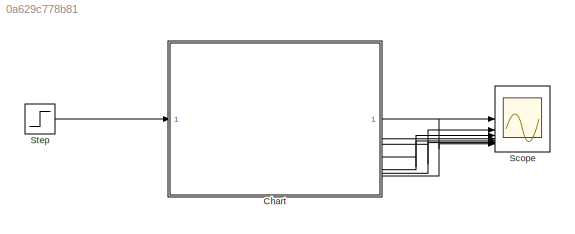
MODEL slx_0a629c778b81
KIND model
CONFIG AbsTol = auto
CONFIG EnableMultiTasking = off
CONFIG FixedStep = 1
CONFIG MaxStep = auto
CONFIG MinStep = auto
CONFIG RelTol = 1e-3
CONFIG SampleTimeConstraint = Unconstrained
CONFIG SolverName = FixedStepAuto
CONFIG StartTime = 0.0
CONFIG StopTime = 65
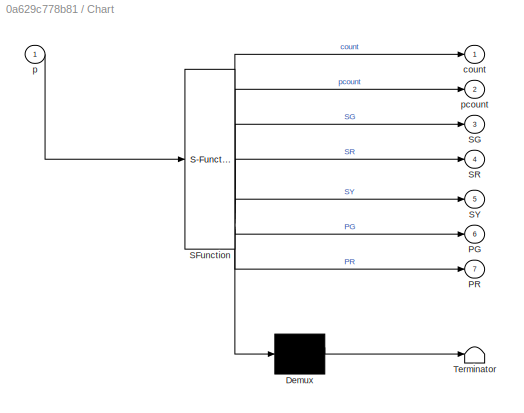
BLOCK [SubSystem] Chart
  ErrorFcn = Stateflow.Translate.translate
  PermitHierarchicalResolution = ExplicitOnly
  SFBlockType = Chart
  TreatAsAtomicUnit = on
BLOCK [Demux] Chart/ Demux 
  Outputs = 1
BLOCK [S-Function] Chart/ SFunction 
  EnableBusSupport = on
  FunctionName = sf_sfun
  PortCounts = [1 8]
  SFcnIsStateOwnerBlock = off
  SFunctionDeploymentMode = off
  Tag = Stateflow S-Function 3
BLOCK [Terminator] Chart/ Terminator 
BLOCK [Outport] Chart/PG
  Port = 6
BLOCK [Outport] Chart/PR
  Port = 7
BLOCK [Outport] Chart/SG
  Port = 3
BLOCK [Outport] Chart/SR
  Port = 4
BLOCK [Outport] Chart/SY
  Port = 5
BLOCK [Outport] Chart/count
BLOCK [Inport] Chart/p
BLOCK [Outport] Chart/pcount
  Port = 2
BLOCK [Scope] Scope
  Floating = off
  NumInputPorts = 7
  ScopeSpecificationString = Simulink.scopes.TimeScopeBlockCfg('CurrentConfiguration', extmgr.ConfigurationSet(extmgr.Configuration('Core','General UI',true),extmgr.Configuration('Core','Source UI',true),extmgr.Configuration('Sources','WiredSimulink',true),extmgr.Configuration('Visuals','Time Domain',true,'SerializedDisplays',{struct('MinYLimReal','-7.625','MaxYLimReal','68.625','YLabelReal','','MinYLimMag','0.00000','MaxYLim...<+6824ch>
BLOCK [Step] Step
  SampleTime = 0
LINE Chart:1 -> Scope:1
LINE Chart:2 -> Scope:2
LINE Chart:3 -> Scope:3
LINE Chart:4 -> Scope:4
LINE Chart:5 -> Scope:5
LINE Chart:6 -> Scope:6
LINE Chart:7 -> Scope:7
LINE Step:1 -> Chart:1
CHART Chart states=5 transitions=12
  STATE_LABEL 'carred_pedred'
  STATE_LABEL 'cargreen_pedred'
  STATE_LABEL 'carred_pedgreen'
  STATE_LABEL 'caryellow_pedred'
  STATE_LABEL 'pending_pedred'
CHART  states=0 transitions=0
